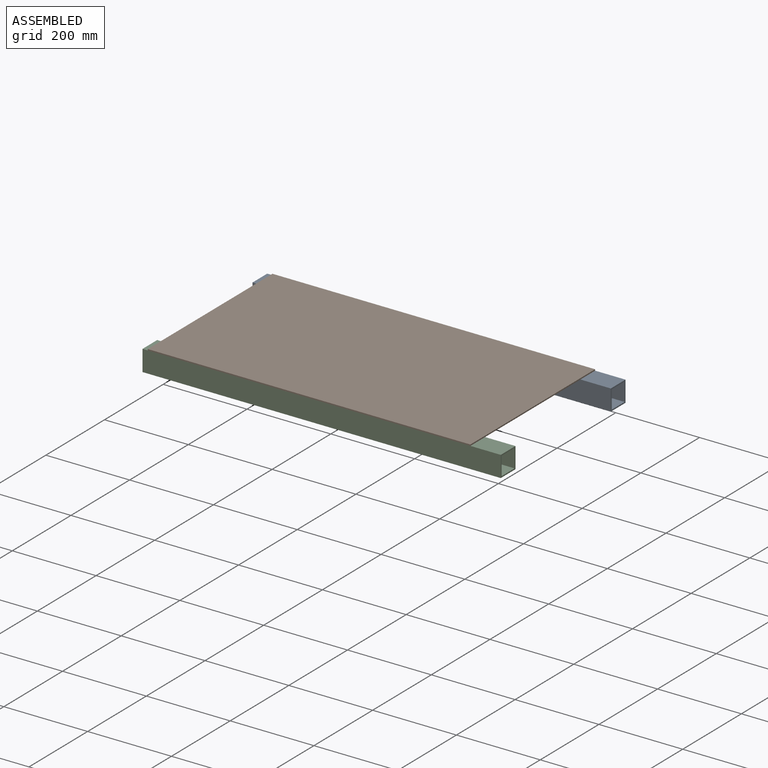
[diagram: assembled view]
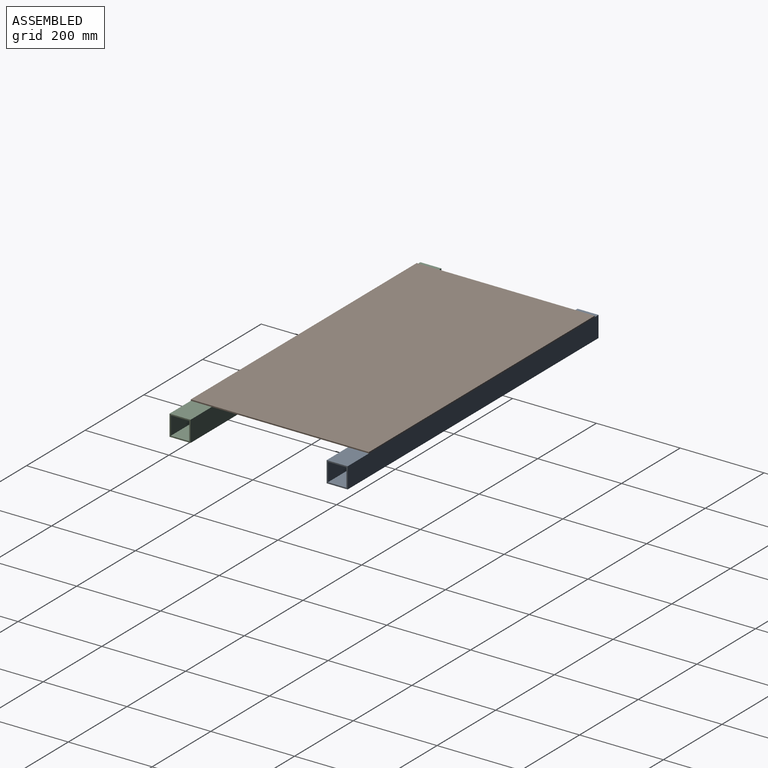
[diagram: assembled view, second angle]
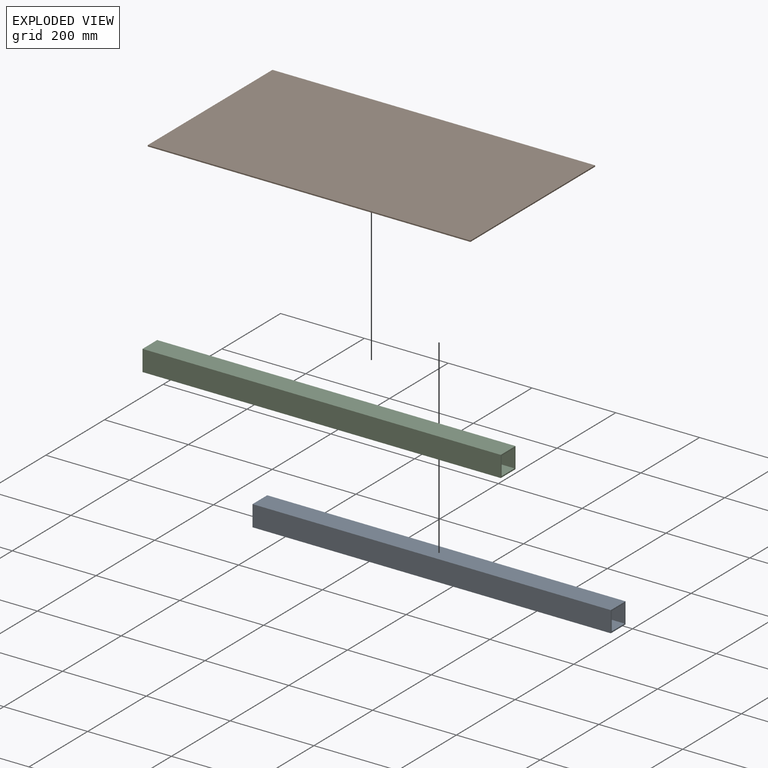
[diagram: exploded view]
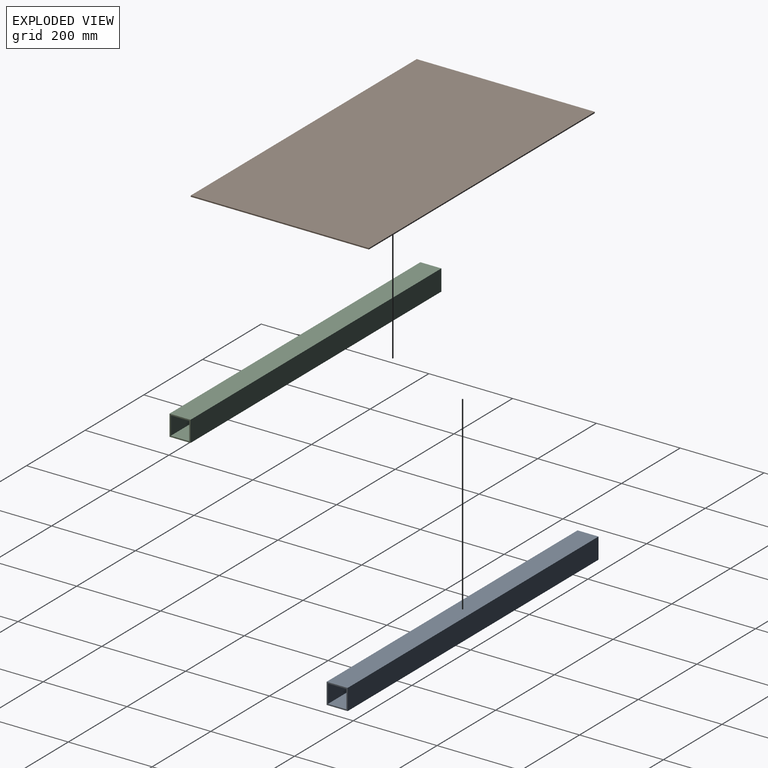
[diagram: exploded view, second angle]
ASSEMBLY  parts=3 mates=2
PART A: 10 faces, bbox 855x50x50 mm
  f0: plane 855x44mm, normal (0,0,1), area 37620mm2, adj f1,f7,f8,f9
  f1: plane 855x44mm, normal (0,1,0), area 37620mm2, adj f0,f2,f8,f9
  f2: plane 855x44mm, normal (0,0,-1), area 37620mm2, adj f1,f7,f8,f9
  f3: plane 855x50mm, normal (0,1,0), area 42750mm2, adj f4,f6,f8,f9
  f4: plane 855x50mm, normal (0,0,1), area 42750mm2, adj f3,f5,f8,f9
  f5: plane 855x50mm, normal (0,-1,0), area 42750mm2, adj f4,f6,f8,f9
  f6: plane 855x50mm, normal (0,0,-1), area 42750mm2, adj f3,f5,f8,f9
  f7: plane 855x44mm, normal (0,-1,0), area 37620mm2, adj f0,f2,f8,f9
  f8: plane 50x50mm, normal (1,0,0), area 564mm2, adj f0,f1,f2,f3,f4,f5,f6,f7
  f9: plane 50x50mm, normal (-1,0,0), area 564mm2, adj f0,f1,f2,f3,f4,f5,f6,f7
PART B: 6 faces, bbox 770x425x3 mm
  f0: plane 770x3mm, normal (0,-1,0), area 2310mm2, adj f1,f3,f4,f5
  f1: plane 425x3mm, normal (1,0,0), area 1275mm2, adj f0,f2,f4,f5
  f2: plane 770x3mm, normal (0,1,0), area 2310mm2, adj f1,f3,f4,f5
  f3: plane 425x3mm, normal (-1,0,0), area 1275mm2, adj f0,f2,f4,f5
  f4: plane 770x425mm, normal (0,0,1), area 327250mm2, adj f0,f1,f2,f3
  f5: plane 770x425mm, normal (0,0,-1), area 327250mm2, adj f0,f1,f2,f3
PART C: same geometry as A
PLACE A t=(-659.86,-41.76,-143.18)mm
PLACE B t=(-262.36,-229.26,-118.18)mm
PLACE C t=(-659.86,-416.76,-143.18)mm
MATE fastened A.f4 <-> B.f5  axis (0,0,1) through (-659.86,-16.76,-118.18)mm
MATE fastened C.f4 <-> B.f5  axis (0,0,1) through (-659.86,-441.76,-118.18)mm
